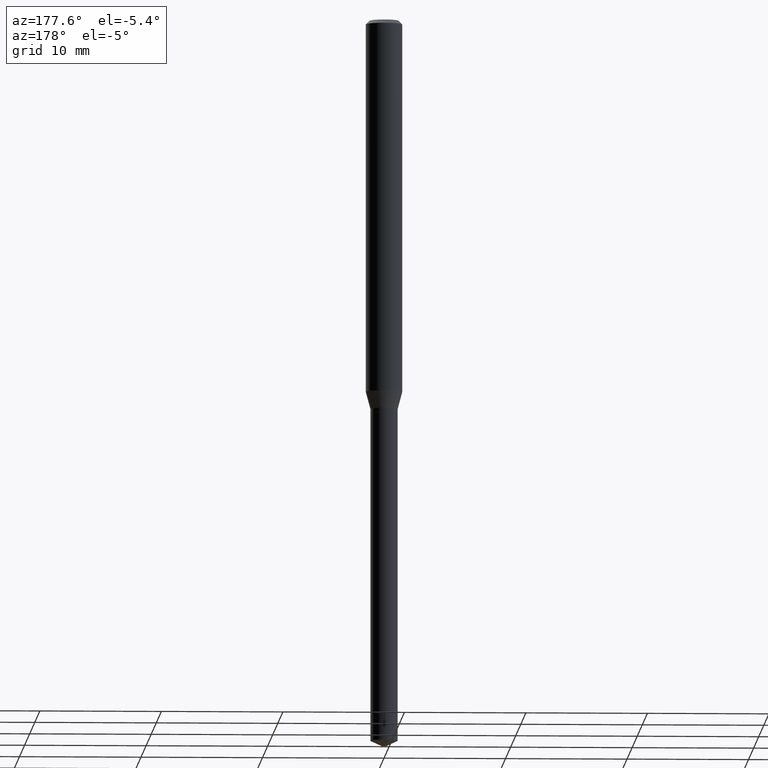
[diagram: clean part render]
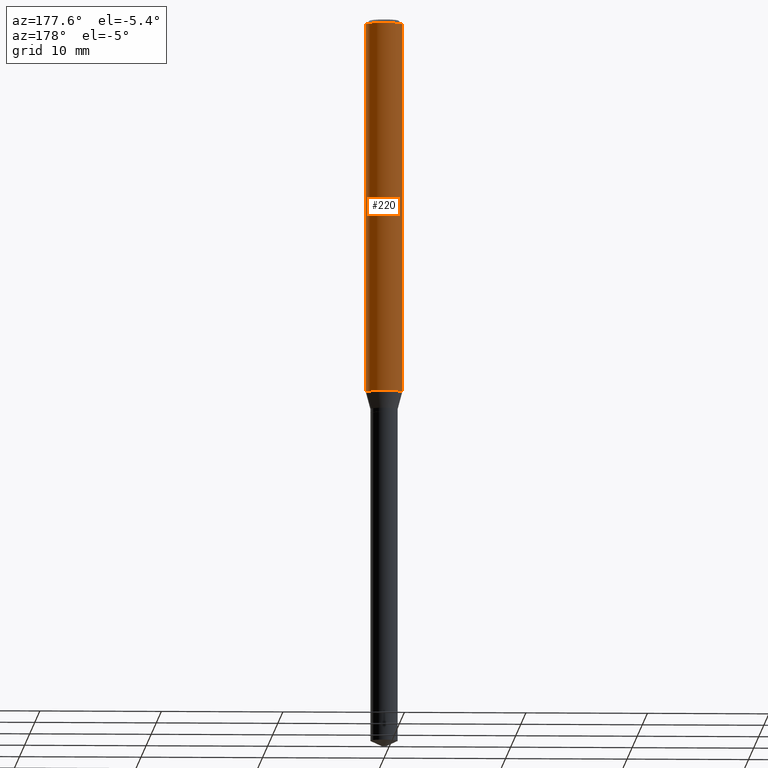
[diagram: same view with one face highlighted and labeled with its STEP entity id]
A machine part, auxiliary view. The second image highlights one B-rep face of the part: STEP entity #220.
In plain terms, the highlighted cylindrical surface (edge-blend (fillet) strip) has radius 1.4999 mm, axis along (-0, 0, 1).
Its self-contained STEP definition (entity closure, byte-faithful):
#29 = DIRECTION ( 'NONE',  ( 1.000000000000000000, -6.982962677686271444E-15, 0.000000000000000000 ) ) ;
#38 = VECTOR ( 'NONE', #171, 39.37007874015748143 ) ;
#40 = DIRECTION ( 'NONE',  ( -2.445468806185136597E-29, 3.491481338843145583E-15, 1.000000000000000000 ) ) ;
#64 = CYLINDRICAL_SURFACE ( 'NONE', #211, 0.05905000000000007465 ) ;
#70 = VERTEX_POINT ( 'NONE', #466 ) ;
#73 = CIRCLE ( 'NONE', #245, 0.05905000000000015098 ) ;
#89 = CIRCLE ( 'NONE', #183, 0.05904999999999999832 ) ;
#98 = CARTESIAN_POINT ( 'NONE',  ( 0.05904999999999999832, -4.535783407291118600E-16, -0.01181000000000007044 ) ) ;
#103 = VECTOR ( 'NONE', #333, 39.37007874015748143 ) ;
#109 = CARTESIAN_POINT ( 'NONE',  ( 2.951808626249396333E-29, -4.214400407937874930E-15, -1.207052250588358744 ) ) ;
#115 = VERTEX_POINT ( 'NONE', #166 ) ;
#136 = DIRECTION ( 'NONE',  ( 1.000000000000000000, -6.982962677686266711E-15, 0.000000000000000000 ) ) ;
#149 = DIRECTION ( 'NONE',  ( -2.445468806185136597E-29, 3.491481338843145583E-15, 1.000000000000000000 ) ) ;
#166 = CARTESIAN_POINT ( 'NONE',  ( 0.05905000000000015098, -4.626744354055249850E-15, -1.207052250588358744 ) ) ;
#171 = DIRECTION ( 'NONE',  ( -2.445468806185136877E-29, 3.491481338843145188E-15, 1.000000000000000000 ) ) ;
#180 = DIRECTION ( 'NONE',  ( 1.000000000000000000, -6.982962677686266711E-15, 4.876176775795936353E-29 ) ) ;
#183 = AXIS2_PLACEMENT_3D ( 'NONE', #226, #40, #136 ) ;
#211 = AXIS2_PLACEMENT_3D ( 'NONE', #292, #295, #180 ) ;
#214 = LINE ( 'NONE', #406, #103 ) ;
#220 = ADVANCED_FACE ( 'NONE', ( #376 ), #64, .T. ) ;
#226 = CARTESIAN_POINT ( 'NONE',  ( 2.888098660104663766E-31, -4.123439461173779647E-17, -0.01181000000000007044 ) ) ;
#228 = EDGE_LOOP ( 'NONE', ( #380, #385, #449, #447 ) ) ;
#238 = EDGE_CURVE ( 'NONE', #115, #306, #214, .T. ) ;
#245 = AXIS2_PLACEMENT_3D ( 'NONE', #109, #149, #29 ) ;
#252 = CARTESIAN_POINT ( 'NONE',  ( -0.05905000000000007465, 4.195754854663396902E-16, -2.904631170795525395E-30 ) ) ;
#253 = EDGE_CURVE ( 'NONE', #115, #70, #73, .T. ) ;
#279 = CARTESIAN_POINT ( 'NONE',  ( -0.05904999999999999832, -1.708241915808465850E-15, -0.01181000000000007044 ) ) ;
#292 = CARTESIAN_POINT ( 'NONE',  ( 0.000000000000000000, 0.000000000000000000, 0.000000000000000000 ) ) ;
#295 = DIRECTION ( 'NONE',  ( -2.445468806185136597E-29, 3.491481338843145583E-15, 1.000000000000000000 ) ) ;
#304 = EDGE_CURVE ( 'NONE', #306, #331, #89, .T. ) ;
#306 = VERTEX_POINT ( 'NONE', #98 ) ;
#313 = EDGE_CURVE ( 'NONE', #70, #331, #434, .T. ) ;
#331 = VERTEX_POINT ( 'NONE', #279 ) ;
#333 = DIRECTION ( 'NONE',  ( -2.445468806185136877E-29, 3.491481338843145188E-15, 1.000000000000000000 ) ) ;
#376 = FACE_OUTER_BOUND ( 'NONE', #228, .T. ) ;
#380 = ORIENTED_EDGE ( 'NONE', *, *, #253, .T. ) ;
#385 = ORIENTED_EDGE ( 'NONE', *, *, #313, .T. ) ;
#406 = CARTESIAN_POINT ( 'NONE',  ( 0.05905000000000007465, -4.123439461173745750E-16, 2.879382386107504074E-30 ) ) ;
#434 = LINE ( 'NONE', #252, #38 ) ;
#447 = ORIENTED_EDGE ( 'NONE', *, *, #238, .F. ) ;
#449 = ORIENTED_EDGE ( 'NONE', *, *, #304, .F. ) ;
#466 = CARTESIAN_POINT ( 'NONE',  ( -0.05905000000000015098, -3.794824922471535437E-15, -1.207052250588358744 ) ) ;